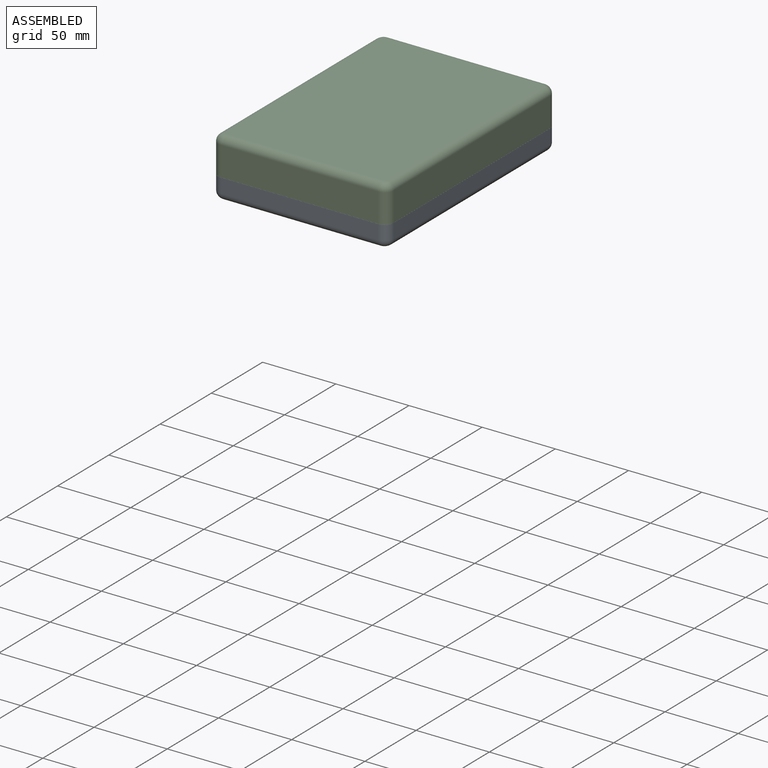
[diagram: assembled view]
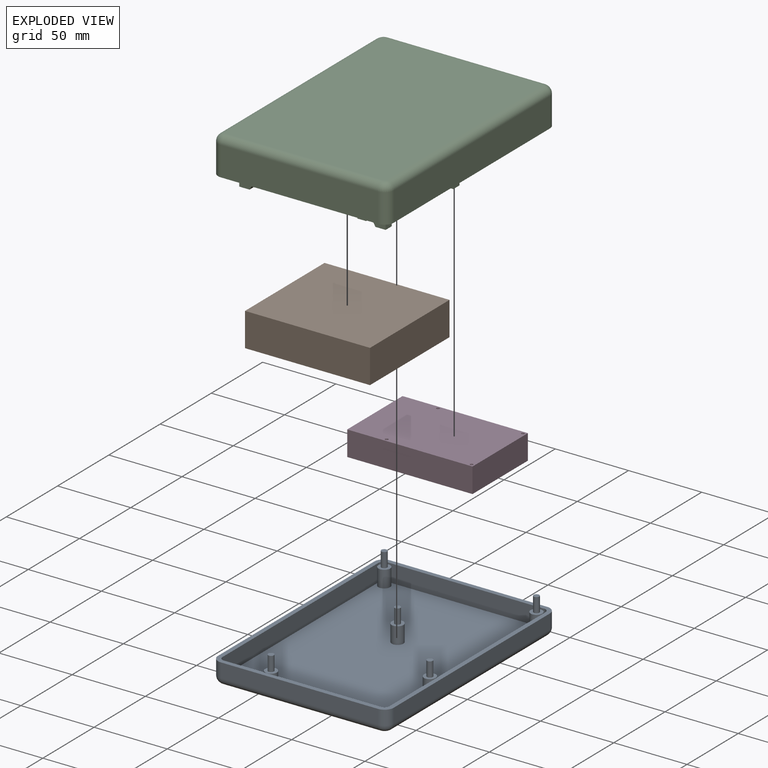
[diagram: exploded view]
GUIDED TOUR — MATED ASSEMBLY (Onshape document 29a1b5181c06f789591f62f4, AutoMate assembly 29a1b5181c06f789591f62f4_102bd33944a6bd957887dbc4_52fb3d9c7681105d894249a6_default)

This assembly has 4 components, labeled P0..P3 below (a component is one placed occurrence of a part; the same part can appear more than once), held together by 6 mates. A mate is a constraint between two components; its type names the relative motion it leaves free:
  CYLINDRICAL — leaves both rotation about and translation along the listed axis free,
  PLANAR — leaves sliding in the plane through the listed point (normal = the listed direction) and rotation about that normal free.
Axis/direction vectors are unit vectors and 'through' points are millimeter coordinates, both in the assembly's world frame.

MATES
  1. PLANAR "Planar 1": P1 <-> P2, direction (0.000, 0.000, -1.000) through (30.55, 182.00, -65.60) mm
  2. PLANAR "Planar 4": P3 <-> P2, direction (0.000, 0.000, 1.000) through (36.02, 262.20, -45.60) mm
  3. CYLINDRICAL "Cylindrical 1": P0 <-> P2, axis (0.000, 0.000, -1.000) through (86.85, 286.20, -61.16) mm
  4. PLANAR "Planar 3": P1 <-> P2, direction (-1.000, 0.000, 0.000) through (-12.15, 182.00, -54.10) mm
  5. PLANAR "Planar 2": P2 <-> P1, direction (0.000, 1.000, 0.000) through (-8.15, 143.20, -54.10) mm
  6. CYLINDRICAL "Cylindrical 2": P3 <-> P2, axis (0.000, 0.000, -1.000) through (76.85, 287.20, -62.60) mm

ASSEMBLY ORDER
  1. P2 — the base component [order heuristic]
  2. P1 — core [order heuristic]
  3. P3 [order verified]
  4. P0 — core [order heuristic]
Order-tag legend:
  [order verified] — this step's position reverses a verified removal order: the component was checked to insert without passing through the ones already placed.
  [order heuristic] — the first 3 components form the assembly's core: parts whose collision-free extraction could not be verified, listed in mate-graph order.

Of the 4 components, 2 carry the full construction recipe — the FeatureScript program that regenerates the part's solid from scratch; the rest are supplied as boundary geometry only.
Each toured component is shown spotlighted twice — in the assembled view, then in the exploded view, where a leader line traces a displaced component back to its assembled socket (saturated green if recipe-attached, orange if geometry-only; every other component desaturated gray) — followed by its recipe or geometry summary and the mates that hold it.
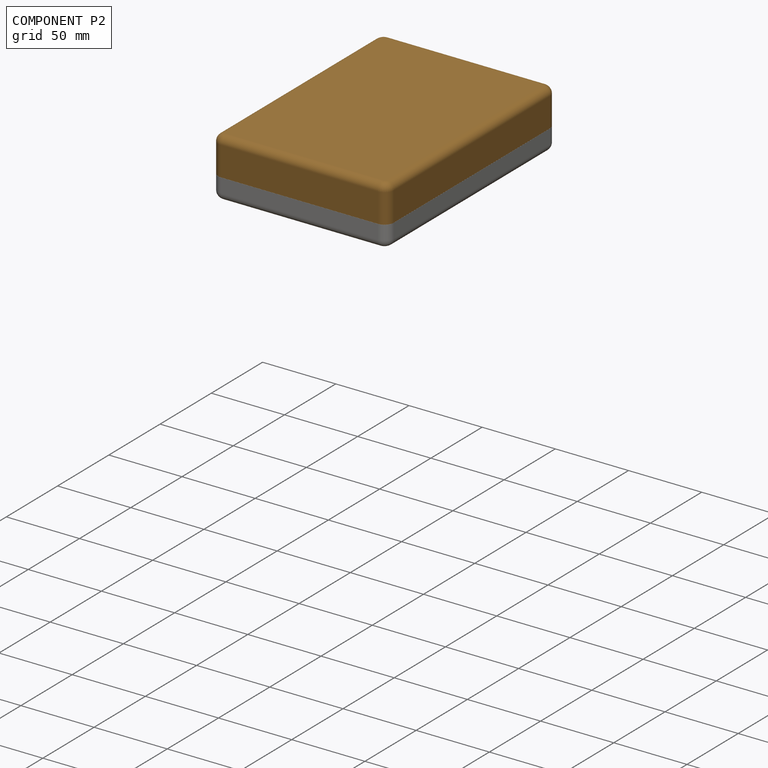
[diagram: component P2 — assembled]
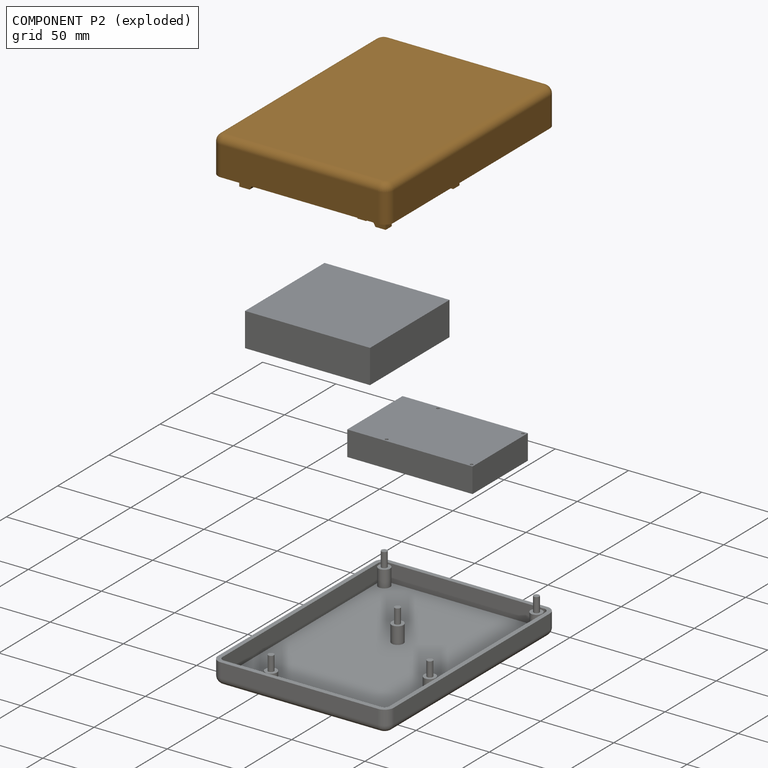
[diagram: component P2 — exploded]
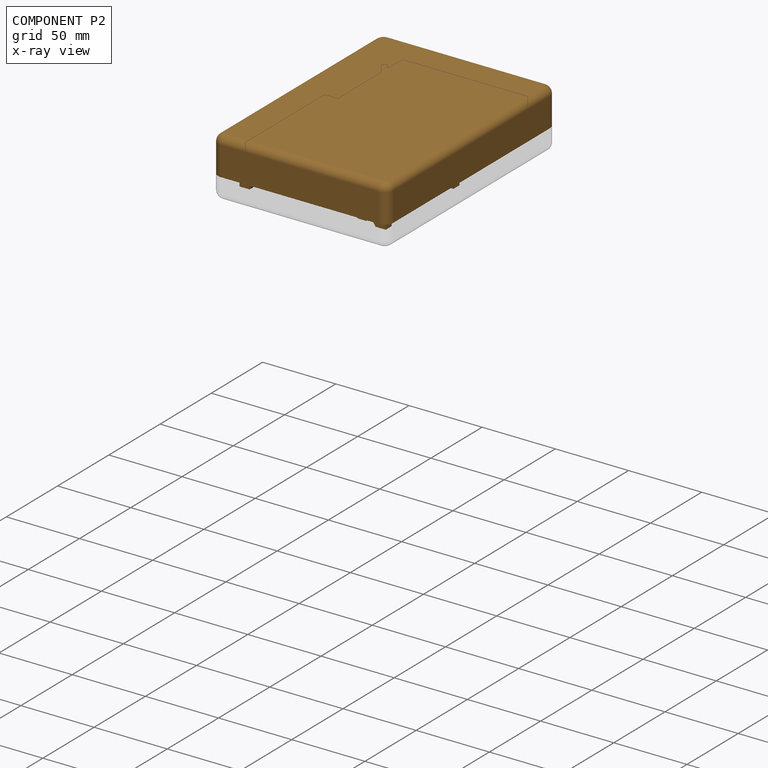
[diagram: component P2 — x-ray view]
COMPONENT P2 — geometry summary (no construction recipe available for this part):
  bounding box: 165.0 x 120.0 x 37.0 mm
  B-rep topology: 1 solid, 147 faces, 707 edges
  volume: 114797 mm^3 (16% of its bounding box)
Held by: PLANAR mate "Planar 1" to P1; PLANAR mate "Planar 4" to P3; CYLINDRICAL mate "Cylindrical 1" to P0; PLANAR mate "Planar 3" to P1; PLANAR mate "Planar 2" to P1; CYLINDRICAL mate "Cylindrical 2" to P3.
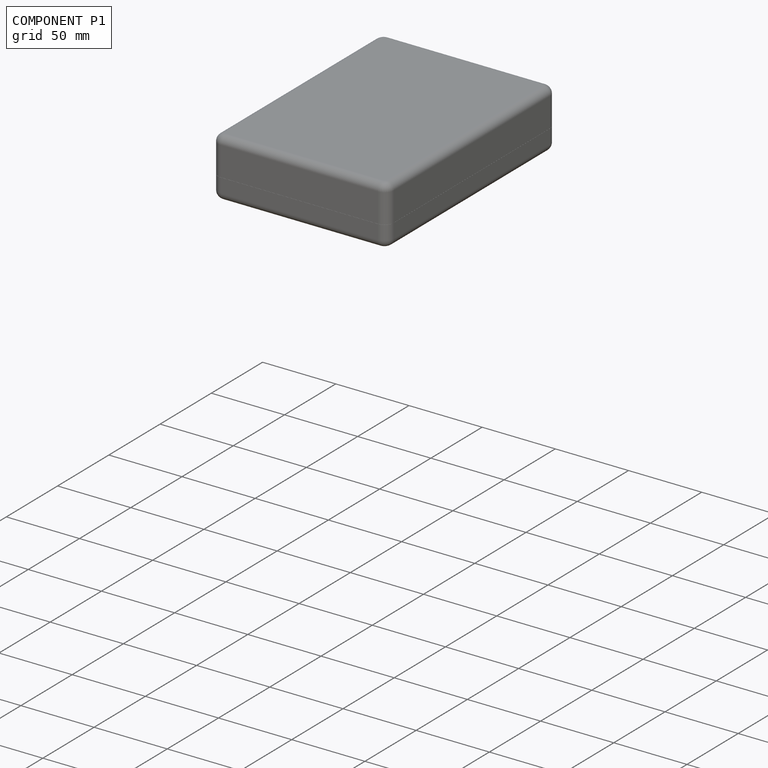
[diagram: component P1 — assembled]
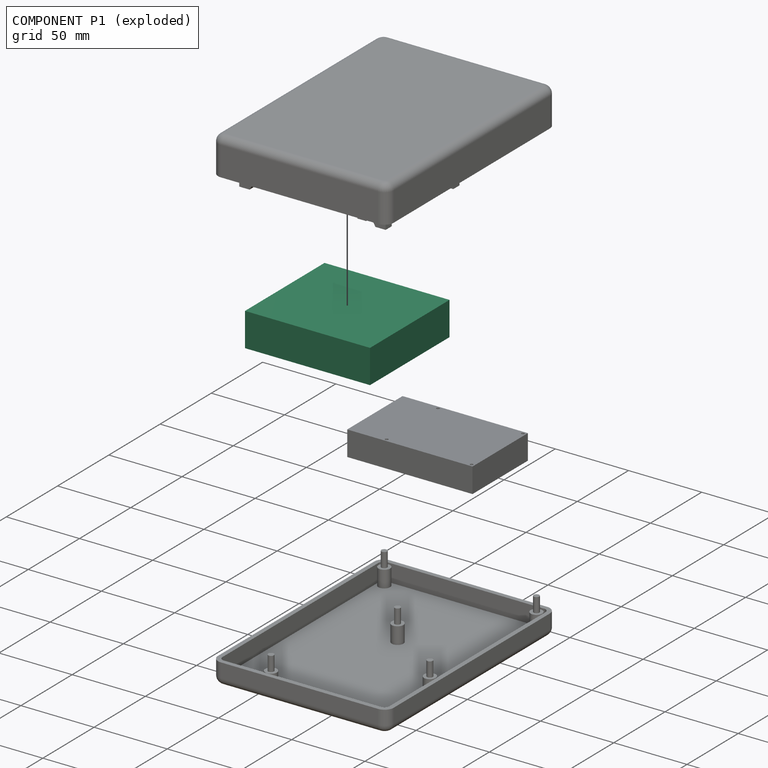
[diagram: component P1 — exploded]
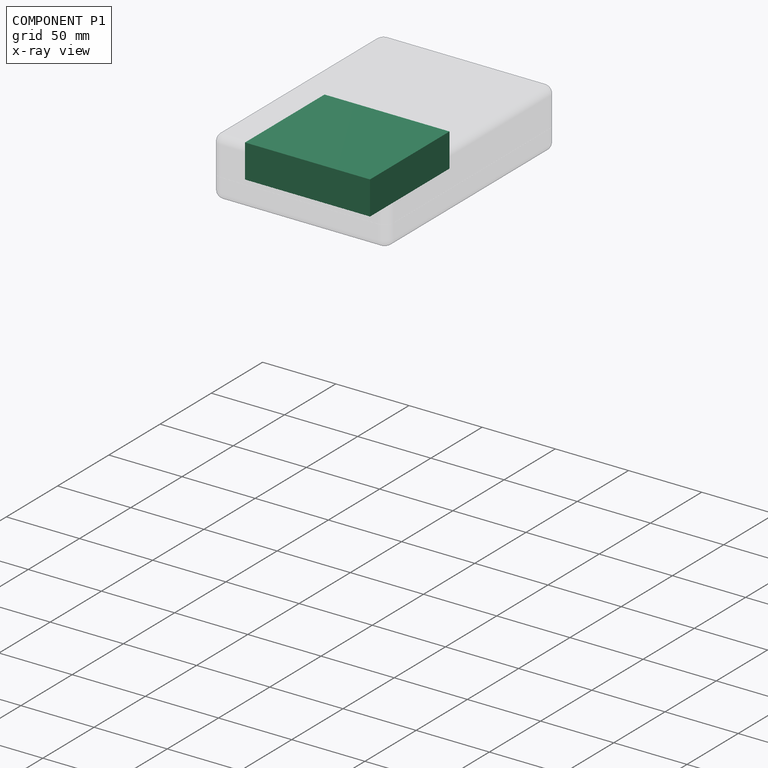
[diagram: component P1 — x-ray view]
COMPONENT P1 — recipe-attached (CADFS 00793131, mesh-verified: the recipe's output STEP matches this component's geometry to below the mesh-comparison resolution (tessellation chordal tolerance ~0.176 mm)).
Held by: PLANAR mate "Planar 1" to P2; PLANAR mate "Planar 3" to P2; PLANAR mate "Planar 2" to P2.
Construction recipe (FeatureScript — the CAD program that rebuilds this solid; sketch coordinates are in the units given by the * unit suffixes, e.g. mm):

FeatureScript 1511;
import(path : "onshape/std/geometry.fs", version : "1511.0");
import(path : "onshape/std/common.fs", version : "1511.0");
const mm = millimeter;
const VERTEX = EntityType.VERTEX;
const EDGE = EntityType.EDGE;
const FACE = EntityType.FACE;
const BODY = EntityType.BODY;
function v(x, y){return vector(x, y);}
function OD(order){return orderDisambiguation(order);}
function OSD(set){return originalSetDisambiguation(set);}
function TD(topology){return topologyDisambiguation(topology);}
function TDD(query){return trueDependencyDisambiguation(query);}
function sQuery(a, b, c) {return sketchEntityQuery(a, b, c);}

annotation { "Feature Type Name" : "Feature", "Feature Type Description" : "" }
export const myFeature = defineFeature(function(context is Context, id is Id, definition is map)
    precondition{}
    {
        {
            var Q0;
            Q0=qCreatedBy(makeId("Top.planeOp"),FACE);
            var sketch = newSketch(context, id + "F0", { "sketchPlane" : qUnion([Q0])});
            skLineSegment(sketch, "E0.bottom", {"start": v(-70.96, 0) * mm, "end": v(6.64, 0) * mm});
            skLineSegment(sketch, "E0.top", {"start": v(-70.96, 85.4) * mm, "end": v(6.64, 85.4) * mm});
            skLineSegment(sketch, "E0.left", {"start": v(-70.96, 0) * mm, "end": v(-70.96, 85.4) * mm});
            skLineSegment(sketch, "E0.right", {"start": v(6.64, 0) * mm, "end": v(6.64, 85.4) * mm});
            skSolve(sketch);
        }
        {
            var Q0;
            Q0=qSketchRegion(id+"F0",true);
            extrude(context, id + "F1", {"entities" : qUnion([Q0]), "depth" : 23 * mm, "offsetDistance" : 25.4 * mm});
        }
    });
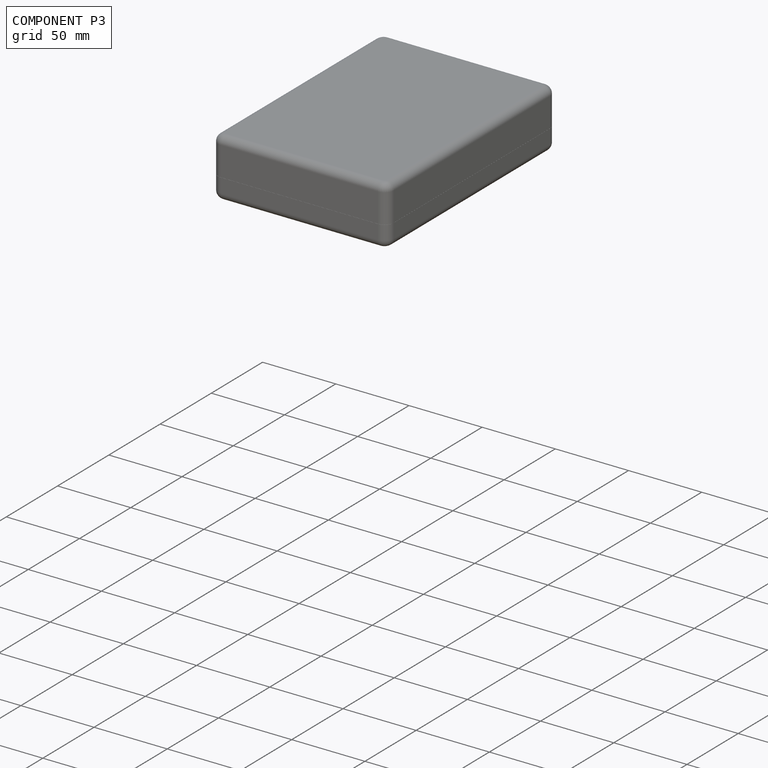
[diagram: component P3 — assembled]
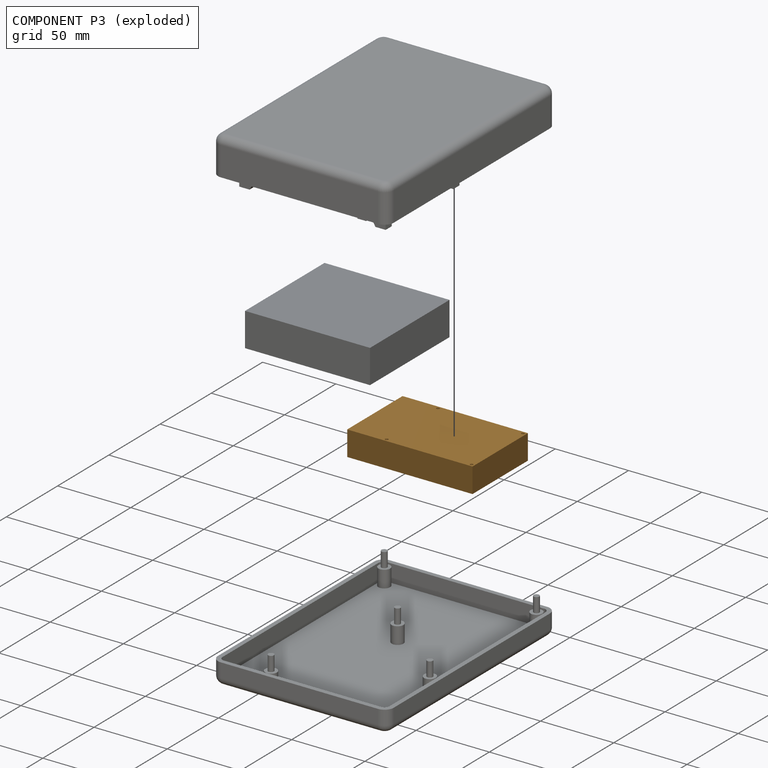
[diagram: component P3 — exploded]
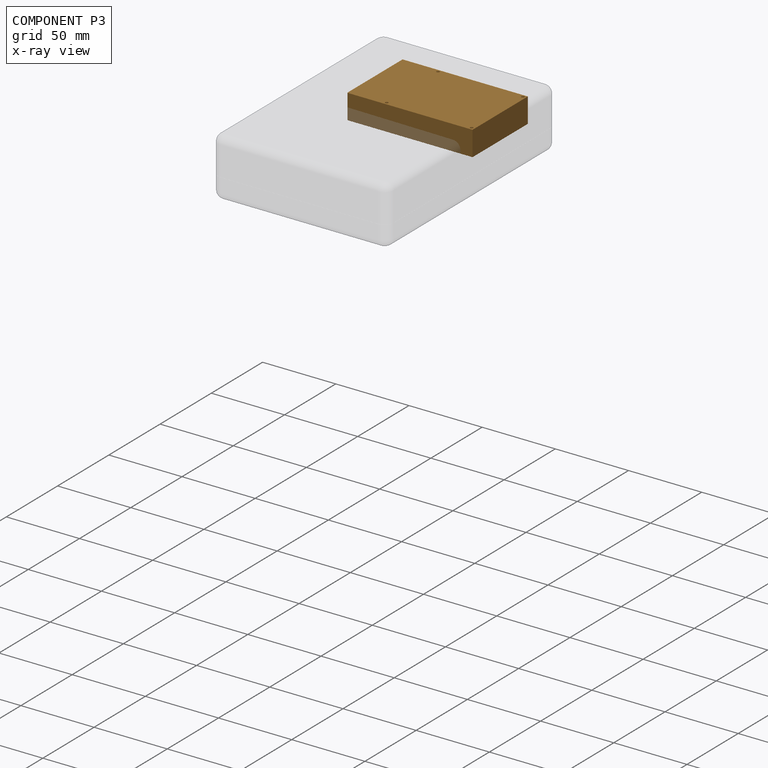
[diagram: component P3 — x-ray view]
COMPONENT P3 — geometry summary (no construction recipe available for this part):
  bounding box: 85.6 x 54.0 x 17.0 mm
  B-rep topology: 1 solid, 10 faces, 48 edges
  volume: 78367 mm^3 (100% of its bounding box)
  symmetry: 2-fold rotationally symmetric about the y axis; mirror-symmetric across its x mid-plane, z mid-plane
Held by: PLANAR mate "Planar 4" to P2; CYLINDRICAL mate "Cylindrical 2" to P2.
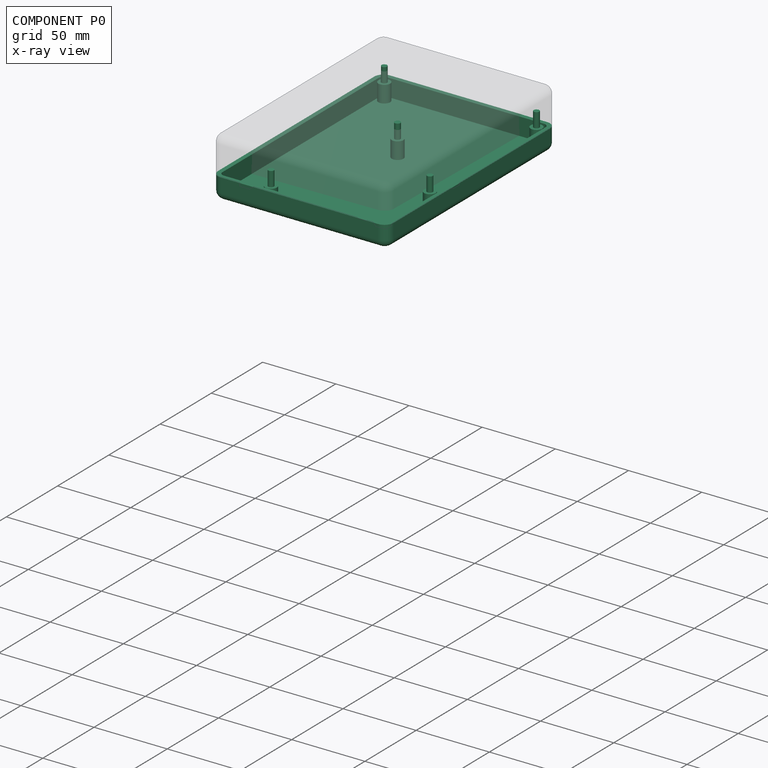
[diagram: component P0 — x-ray view]
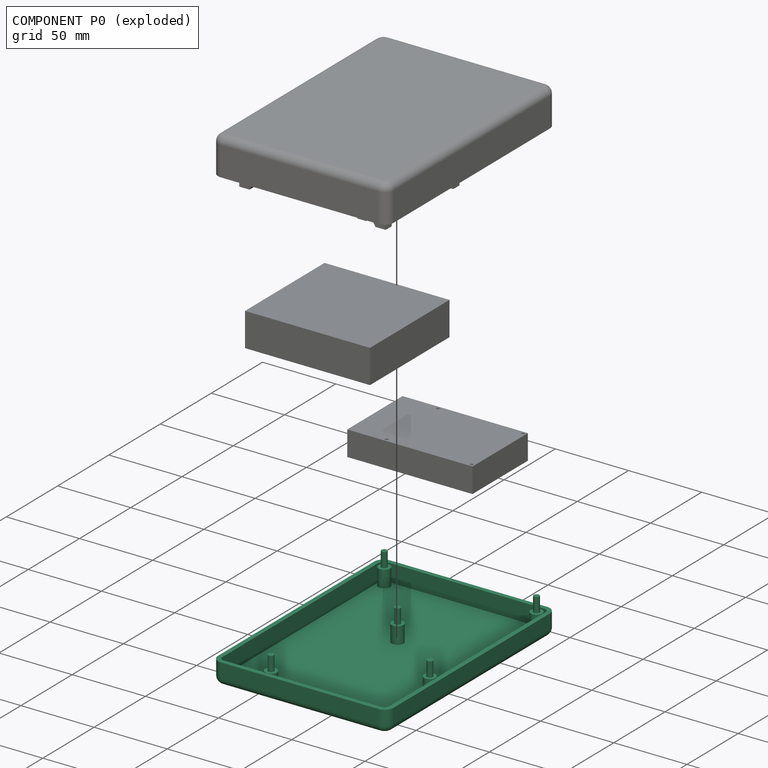
[diagram: component P0 — exploded]
COMPONENT P0 — recipe-attached (CADFS 00786570, mesh-verified: the recipe's output STEP matches this component's geometry to below the mesh-comparison resolution (tessellation chordal tolerance ~0.308 mm)).
Held by: CYLINDRICAL mate "Cylindrical 1" to P2.
Construction recipe (FeatureScript — the CAD program that rebuilds this solid; sketch coordinates are in the units given by the * unit suffixes, e.g. mm):

FeatureScript 1511;
import(path : "onshape/std/geometry.fs", version : "1511.0");
import(path : "onshape/std/common.fs", version : "1511.0");
const mm = millimeter;
const VERTEX = EntityType.VERTEX;
const EDGE = EntityType.EDGE;
const FACE = EntityType.FACE;
const BODY = EntityType.BODY;
function v(x, y){return vector(x, y);}
function OD(order){return orderDisambiguation(order);}
function OSD(set){return originalSetDisambiguation(set);}
function TD(topology){return topologyDisambiguation(topology);}
function TDD(query){return trueDependencyDisambiguation(query);}
function sQuery(a, b, c) {return sketchEntityQuery(a, b, c);}

annotation { "Feature Type Name" : "Feature", "Feature Type Description" : "" }
export const myFeature = defineFeature(function(context is Context, id is Id, definition is map)
    precondition{}
    {
        {
            var Q0;
            Q0=qCreatedBy(makeId("Top.planeOp"),FACE);
            var sketch = newSketch(context, id + "F0", { "sketchPlane" : qUnion([Q0])});
            skLineSegment(sketch, "E0.bottom", {"start": v(-76.98, -45.25) * mm, "end": v(75.32, -45.25) * mm});
            skLineSegment(sketch, "E0.top", {"start": v(-76.98, 74.75) * mm, "end": v(75.32, 74.75) * mm});
            skLineSegment(sketch, "E0.left", {"start": v(-83.33, -38.9) * mm, "end": v(-83.33, 68.4) * mm});
            skLineSegment(sketch, "E0.right", {"start": v(81.67, -38.9) * mm, "end": v(81.67, 68.4) * mm});
            skPoint(sketch, "E1.visualSharp", {"position": v(-83.33, 74.75) * mm});
            skArc(sketch, "E1.filletArc", {"start": v(-76.98, 74.75) * mm, "mid": v(-81.47, 72.89) * mm, "end": v(-83.33, 68.4) * mm});
            skPoint(sketch, "E2.visualSharp", {"position": v(81.67, 74.75) * mm});
            skArc(sketch, "E2.filletArc", {"start": v(81.67, 68.4) * mm, "mid": v(79.8, 72.89) * mm, "end": v(75.32, 74.75) * mm});
            skPoint(sketch, "E3.visualSharp", {"position": v(81.67, -45.25) * mm});
            skArc(sketch, "E3.filletArc", {"start": v(75.32, -45.25) * mm, "mid": v(79.8, -43.4) * mm, "end": v(81.67, -38.9) * mm});
            skPoint(sketch, "E4.visualSharp", {"position": v(-83.33, -45.25) * mm});
            skArc(sketch, "E4.filletArc", {"start": v(-83.33, -38.9) * mm, "mid": v(-81.47, -43.4) * mm, "end": v(-76.98, -45.25) * mm});
            skSolve(sketch);
        }
        {
            var Q0;
            Q0 = qSketchRegion(id + "F0", true);
            extrude(context, id + "F1", {"entities" : qUnion([Q0]), "depth" : 15 * mm, "offsetDistance" : 25.4 * mm});
        }
        {
            var Q0;
            Q0=makeQuery(id+"F1.opExtrude","CAP_FACE",FACE,{"disambiguationData":[OSD([sQuery(id+"F0.wireOp",EDGE,"E0.bottom"),sQuery(id+"F0.wireOp",EDGE,"E0.top"),sQuery(id+"F0.wireOp",EDGE,"E0.left"),sQuery(id+"F0.wireOp",EDGE,"E0.right")])],"isStart":false});
            shell(context, id + "F2", {"entities" : qUnion([Q0]), "thickness" : 3 * mm});
        }
        {
            var Q0;
            Q0=makeQuery(id+"F1.opExtrude","CAP_EDGE",EDGE,{"disambiguationData":[OSD([sQuery(id+"F0.wireOp",EDGE,"E1.filletArc")])],"isStart":true});
            fillet(context, id + "F3", {"entities" : qUnion([Q0]), "radius" : 5.08 * mm, "tangentPropagation" : true, "allowEdgeOverflow" : false});
        }
        {
            var Q0;
            Q0=makeQuery(id+"F2.opShell","OFFSET_FACE",FACE,{"disambiguationData":[OSD([sQuery(id+"F0.wireOp",EDGE,"E0.bottom"),sQuery(id+"F0.wireOp",EDGE,"E0.top"),sQuery(id+"F0.wireOp",EDGE,"E0.left"),sQuery(id+"F0.wireOp",EDGE,"E0.right"),sQuery(id+"F0.wireOp",EDGE,"E1.filletArc"),sQuery(id+"F0.wireOp",EDGE,"E2.filletArc"),sQuery(id+"F0.wireOp",EDGE,"E3.filletArc"),sQuery(id+"F0.wireOp",EDGE,"E4.filletArc")])]});
            var sketch = newSketch(context, id + "F4", { "sketchPlane" : qUnion([Q0])});
            skCircle(sketch, "E5", {"center": v(73.67, -37.25) * mm, "radius": 4 * mm});
            skCircle(sketch, "E6", {"center": v(73.67, 66.75) * mm, "radius": 4 * mm});
            skCircle(sketch, "E7", {"center": v(16.67, 17.75) * mm, "radius": 4 * mm});
            skCircle(sketch, "E8", {"center": v(-75.33, 39.75) * mm, "radius": 4 * mm});
            skCircle(sketch, "E9", {"center": v(-30.33, -37.25) * mm, "radius": 4 * mm});
            skSolve(sketch);
        }
        {
            var Q0;
            Q0 = qSketchRegion(id + "F4", true);
            extrude(context, id + "F5", {"entities" : qUnion([Q0]), "operationType" : NewBodyOperationType.ADD, "depth" : 11.5 * mm, "offsetDistance" : 25 * mm});
        }
        {
            var Q0;
            Q0=makeQuery(id+"F5.opExtrude","CAP_FACE",FACE,{"disambiguationData":[OSD([sQuery(id+"F4.wireOp",EDGE,"E5")])],"isStart":false});
            var sketch = newSketch(context, id + "F6", { "sketchPlane" : qUnion([Q0])});
            skCircle(sketch, "E10", {"center": v(73.67, -37.25) * mm, "radius": 1.95 * mm});
            skCircle(sketch, "E11", {"center": v(16.67, 17.75) * mm, "radius": 1.95 * mm});
            skCircle(sketch, "E12", {"center": v(73.67, 66.75) * mm, "radius": 1.95 * mm});
            skCircle(sketch, "E13", {"center": v(-30.33, -37.25) * mm, "radius": 1.95 * mm});
            skCircle(sketch, "E14", {"center": v(-75.33, 39.75) * mm, "radius": 1.95 * mm});
            skSolve(sketch);
        }
        {
            var Q0;
            Q0 = qSketchRegion(id + "F6", true);
            extrude(context, id + "F7", {"entities" : qUnion([Q0]), "operationType" : NewBodyOperationType.ADD, "depth" : 10 * mm, "offsetDistance" : 25 * mm});
        }
    });
PROVENANCE & LICENSES
Assembly (occurrences, transforms, mates, per-part STEP geometry): AutoMate dataset, Zenodo record 7776208, CC0.
Construction recipes: CADFS (HuggingFace VladPyatov/CADFS, CC-BY-4.0, layered over the ABC dataset), FeatureScript reconstruction programs keyed by ABC model id.
Join: ABC meta listings map ABC model id -> Onshape documentId; within a shared document, parts are matched by geometric signature (bounding-box dims + volume at 0.1% relative tolerance, exact B-rep face/solid counts).
Verification: 2 of this assembly's 4 components carry a recipe attachment, and every attachment is mesh-verified: the CADFS STEP and the AutoMate member STEP were compared as meshes in their shared local frame (symmetric sampled-point-to-mesh distance); worst across the 2 attachments: below the mesh-comparison resolution (tessellation chordal tolerance ~0.308 mm) on a 205 mm part.
Renders: orthographic iso camera (az 35 / el 25); the floor grid conveys scale (grid pitch printed in each image; no ruler). In the exploded view each component is displaced by its stored offset vector: the offsets alone carry the explosion direction (mate normal/axis signs are not orientation cues and do not encode it), and separation distances are assigned per mate-chain, not proportionally to assembly-order depth.
